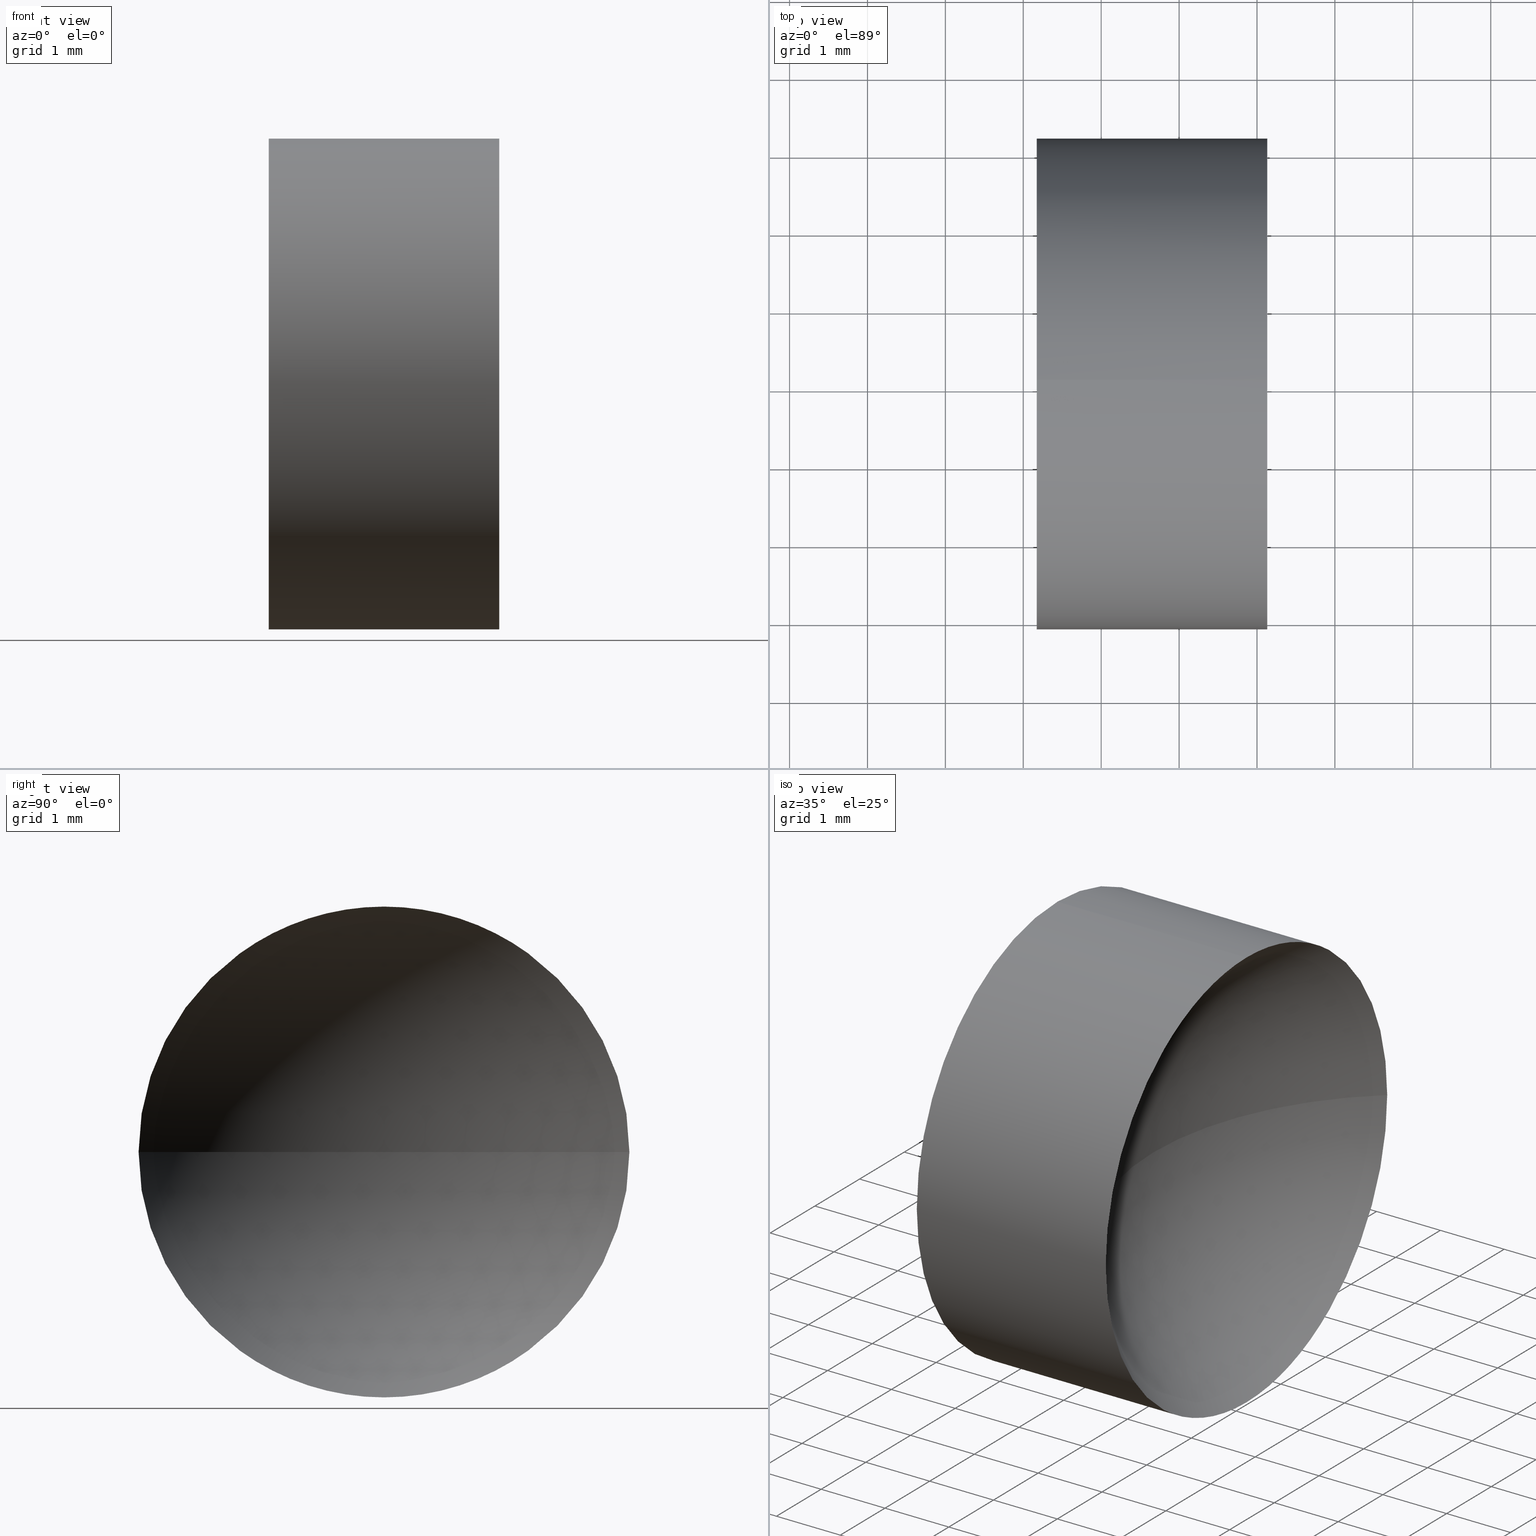
[diagram: canonical four-view strip — front | top / right | iso, engineering-drawing reading convention]
A machine part, canonical four-view strip (front | top / right | iso — engineering-drawing reading convention). The complete STEP part file that produces these views, byte-faithful:
ISO-10303-21;
HEADER;
FILE_DESCRIPTION (( 'STEP AP214' ),
    '1' );
FILE_NAME ('120003.STEP',
    '2019-06-14T02:18:31',
    ( '' ),
    ( '' ),
    'SwSTEP 2.0',
    'SolidWorks 2016',
    '' );
FILE_SCHEMA (( 'AUTOMOTIVE_DESIGN' ));
ENDSEC;

DATA;
#1 = EDGE_LOOP ( 'NONE', ( #78, #87, #23, #181 ) ) ;
#2 = LINE ( 'NONE', #27, #182 ) ;
#3 = CARTESIAN_POINT ( 'NONE',  ( 25.13218947520227800, 13.04452057459747900, 0.0000000000000000000 ) ) ;
#4 = FILL_AREA_STYLE ('',( #175 ) ) ;
#5 = SURFACE_STYLE_USAGE ( .BOTH. , #91 ) ;
#6 = DIRECTION ( 'NONE',  ( 0.0000000000000000000, 0.0000000000000000000, 1.000000000000000000 ) ) ;
#7 = SURFACE_STYLE_FILL_AREA ( #155 ) ;
#8 = UNCERTAINTY_MEASURE_WITH_UNIT (LENGTH_MEASURE( 1.000000000000000100E-005 ), #160, 'distance_accuracy_value', 'NONE');
#9 = FACE_OUTER_BOUND ( 'NONE', #1, .T. ) ;
#10 = EDGE_LOOP ( 'NONE', ( #169, #185 ) ) ;
#11 = PRODUCT_DEFINITION ( 'δ֪', '', #131, #106 ) ;
#12 = FACE_OUTER_BOUND ( 'NONE', #64, .T. ) ;
#13 = ADVANCED_FACE ( 'NONE', ( #12 ), #118, .F. ) ;
#14 = DIRECTION ( 'NONE',  ( 0.0000000000000000000, -1.000000000000000000, -1.224646799147353000E-016 ) ) ;
#15 = PRODUCT_RELATED_PRODUCT_CATEGORY ( 'part', '', ( #29 ) ) ;
#16 =( NAMED_UNIT ( * ) PLANE_ANGLE_UNIT ( ) SI_UNIT ( $, .RADIAN. ) );
#17 = CARTESIAN_POINT ( 'NONE',  ( 25.13218947520227800, 13.04452057459747900, -3.150000000000001700 ) ) ;
#18 = AXIS2_PLACEMENT_3D ( 'NONE', #168, #108, #117 ) ;
#19 = APPLICATION_CONTEXT ( 'automotive_design' ) ;
#20 = ORIENTED_EDGE ( 'NONE', *, *, #58, .F. ) ;
#21 = FACE_OUTER_BOUND ( 'NONE', #39, .T. ) ;
#22 = PRESENTATION_STYLE_ASSIGNMENT (( #5 ) ) ;
#23 = ORIENTED_EDGE ( 'NONE', *, *, #66, .F. ) ;
#24 = CIRCLE ( 'NONE', #79, 3.150000000000001700 ) ;
#25 = DIRECTION ( 'NONE',  ( 0.0000000000000000000, 0.0000000000000000000, -1.000000000000000000 ) ) ;
#26 = CARTESIAN_POINT ( 'NONE',  ( 27.80030591355844600, 13.04452057459747900, 0.0000000000000000000 ) ) ;
#27 = CARTESIAN_POINT ( 'NONE',  ( 21.24768693344483200, 13.04452057459747900, -3.150000000000001700 ) ) ;
#28 = DIRECTION ( 'NONE',  ( 0.0000000000000000000, 0.0000000000000000000, 1.000000000000000000 ) ) ;
#29 = PRODUCT ( '120003', '120003', '', ( #113 ) ) ;
#30 = CARTESIAN_POINT ( 'NONE',  ( 25.13218947520227800, 13.04452057459747900, 0.0000000000000000000 ) ) ;
#31 = DIRECTION ( 'NONE',  ( 0.0000000000000000000, 0.0000000000000000000, 1.000000000000000000 ) ) ;
#32 = APPLICATION_CONTEXT ( 'automotive_design' ) ;
#33 = ORIENTED_EDGE ( 'NONE', *, *, #53, .F. ) ;
#34 = CARTESIAN_POINT ( 'NONE',  ( 27.80030591355844600, 13.04452057459747900, 0.0000000000000000000 ) ) ;
#35 = FACE_OUTER_BOUND ( 'NONE', #148, .T. ) ;
#36 = CIRCLE ( 'NONE', #89, 3.150000000000001700 ) ;
#37 = ORIENTED_EDGE ( 'NONE', *, *, #75, .T. ) ;
#38 = MANIFOLD_SOLID_BREP ( '��ת1', #115 ) ;
#39 = EDGE_LOOP ( 'NONE', ( #37, #153, #112, #51, #177 ) ) ;
#40 = SPHERICAL_SURFACE ( 'NONE', #98, 4.128116438356165900 ) ;
#41 = AXIS2_PLACEMENT_3D ( 'NONE', #173, #50, #90 ) ;
#42 = ORIENTED_EDGE ( 'NONE', *, *, #167, .F. ) ;
#43 = DIRECTION ( 'NONE',  ( -1.000000000000000000, 0.0000000000000000000, 0.0000000000000000000 ) ) ;
#44 = DIRECTION ( 'NONE',  ( 0.0000000000000000000, 0.0000000000000000000, 1.000000000000000000 ) ) ;
#45 = DIRECTION ( 'NONE',  ( -1.000000000000000000, -0.0000000000000000000, -0.0000000000000000000 ) ) ;
#46 =( NAMED_UNIT ( * ) SI_UNIT ( $, .STERADIAN. ) SOLID_ANGLE_UNIT ( ) );
#47 = VERTEX_POINT ( 'NONE', #69 ) ;
#48 = FILL_AREA_STYLE_COLOUR ( '', #126 ) ;
#49 =( LENGTH_UNIT ( ) NAMED_UNIT ( * ) SI_UNIT ( .MILLI., .METRE. ) );
#50 = DIRECTION ( 'NONE',  ( -1.000000000000000000, -0.0000000000000000000, -0.0000000000000000000 ) ) ;
#51 = ORIENTED_EDGE ( 'NONE', *, *, #83, .F. ) ;
#52 = STYLED_ITEM ( 'NONE', ( #22 ), #85 ) ;
#53 = EDGE_CURVE ( 'NONE', #130, #55, #179, .T. ) ;
#54 = ORIENTED_EDGE ( 'NONE', *, *, #83, .T. ) ;
#55 = VERTEX_POINT ( 'NONE', #138 ) ;
#56 = ADVANCED_FACE ( 'NONE', ( #21 ), #127, .T. ) ;
#57 = PLANE ( 'NONE',  #18 ) ;
#58 = EDGE_CURVE ( 'NONE', #97, #144, #2, .T. ) ;
#59 = DIRECTION ( 'NONE',  ( 0.0000000000000000000, 0.0000000000000000000, 1.000000000000000000 ) ) ;
#60 = CYLINDRICAL_SURFACE ( 'NONE', #114, 3.150000000000001700 ) ;
#61 = CARTESIAN_POINT ( 'NONE',  ( 25.13218947520227800, 13.04452057459747900, 0.0000000000000000000 ) ) ;
#62 = DIRECTION ( 'NONE',  ( 0.0000000000000000000, 0.0000000000000000000, 1.000000000000000000 ) ) ;
#63 = DIRECTION ( 'NONE',  ( -1.000000000000000000, -0.0000000000000000000, -0.0000000000000000000 ) ) ;
#64 = EDGE_LOOP ( 'NONE', ( #33, #81, #149, #161 ) ) ;
#65 = LINE ( 'NONE', #74, #72 ) ;
#66 = EDGE_CURVE ( 'NONE', #47, #55, #162, .T. ) ;
#67 = ADVANCED_FACE ( 'NONE', ( #140 ), #57, .F. ) ;
#68 = EDGE_CURVE ( 'NONE', #77, #144, #100, .T. ) ;
#69 = CARTESIAN_POINT ( 'NONE',  ( 25.13218947520227800, 9.894520574597477100, 0.0000000000000000000 ) ) ;
#70 = DIRECTION ( 'NONE',  ( 0.0000000000000000000, -1.224646799147353200E-016, 1.000000000000000000 ) ) ;
#71 = UNCERTAINTY_MEASURE_WITH_UNIT (LENGTH_MEASURE( 1.000000000000000100E-005 ), #49, 'distance_accuracy_value', 'NONE');
#72 = VECTOR ( 'NONE', #105, 1000.000000000000000 ) ;
#73 = CARTESIAN_POINT ( 'NONE',  ( 25.13218947520227800, 13.04452057459747900, 3.150000000000001700 ) ) ;
#74 = CARTESIAN_POINT ( 'NONE',  ( 21.24768693344483200, 13.04452057459747900, 3.150000000000001700 ) ) ;
#75 = EDGE_CURVE ( 'NONE', #130, #97, #95, .T. ) ;
#76 = APPLICATION_PROTOCOL_DEFINITION ( 'draft international standard', 'automotive_design', 1998, #19 ) ;
#77 = VERTEX_POINT ( 'NONE', #99 ) ;
#78 = ORIENTED_EDGE ( 'NONE', *, *, #75, .F. ) ;
#79 = AXIS2_PLACEMENT_3D ( 'NONE', #143, #101, #59 ) ;
#80 = MECHANICAL_DESIGN_GEOMETRIC_PRESENTATION_REPRESENTATION (  '', ( #52 ), #151 ) ;
#81 = ORIENTED_EDGE ( 'NONE', *, *, #128, .F. ) ;
#82 = ORIENTED_EDGE ( 'NONE', *, *, #147, .T. ) ;
#83 = EDGE_CURVE ( 'NONE', #159, #77, #65, .T. ) ;
#84 = CARTESIAN_POINT ( 'NONE',  ( 21.24768693344483200, 13.04452057459747900, 0.0000000000000000000 ) ) ;
#85 = ADVANCED_BREP_SHAPE_REPRESENTATION ( '120003', ( #38, #129 ), #88 ) ;
#86 = CARTESIAN_POINT ( 'NONE',  ( 27.80030591355844600, 13.04452057459747900, 0.0000000000000000000 ) ) ;
#87 = ORIENTED_EDGE ( 'NONE', *, *, #53, .T. ) ;
#88 =( GEOMETRIC_REPRESENTATION_CONTEXT ( 3 ) GLOBAL_UNCERTAINTY_ASSIGNED_CONTEXT ( ( #71 ) ) GLOBAL_UNIT_ASSIGNED_CONTEXT ( ( #49, #174, #124 ) ) REPRESENTATION_CONTEXT ( 'NONE', 'WORKASPACE' ) );
#89 = AXIS2_PLACEMENT_3D ( 'NONE', #30, #63, #31 ) ;
#90 = DIRECTION ( 'NONE',  ( 0.0000000000000000000, 0.0000000000000000000, 1.000000000000000000 ) ) ;
#91 = SURFACE_SIDE_STYLE ('',( #119 ) ) ;
#92 = DIRECTION ( 'NONE',  ( -1.000000000000000000, -0.0000000000000000000, -0.0000000000000000000 ) ) ;
#93 = ORIENTED_EDGE ( 'NONE', *, *, #183, .T. ) ;
#94 = STYLED_ITEM ( 'NONE', ( #152 ), #38 ) ;
#95 = CIRCLE ( 'NONE', #180, 3.150000000000001700 ) ;
#96 = DIRECTION ( 'NONE',  ( -1.000000000000000000, -0.0000000000000000000, -0.0000000000000000000 ) ) ;
#97 = VERTEX_POINT ( 'NONE', #17 ) ;
#98 = AXIS2_PLACEMENT_3D ( 'NONE', #34, #102, #125 ) ;
#99 = CARTESIAN_POINT ( 'NONE',  ( 22.17218947520228100, 13.04452057459747900, 3.150000000000001700 ) ) ;
#100 = CIRCLE ( 'NONE', #103, 3.150000000000001700 ) ;
#101 = DIRECTION ( 'NONE',  ( -1.000000000000000000, -0.0000000000000000000, -0.0000000000000000000 ) ) ;
#102 = DIRECTION ( 'NONE',  ( 0.0000000000000000000, 0.0000000000000000000, 1.000000000000000000 ) ) ;
#103 = AXIS2_PLACEMENT_3D ( 'NONE', #135, #45, #28 ) ;
#104 = DIRECTION ( 'NONE',  ( 1.000000000000000000, 0.0000000000000000000, 0.0000000000000000000 ) ) ;
#105 = DIRECTION ( 'NONE',  ( -1.000000000000000000, -0.0000000000000000000, -0.0000000000000000000 ) ) ;
#106 = PRODUCT_DEFINITION_CONTEXT ( 'detailed design', #32, 'design' ) ;
#107 = AXIS2_PLACEMENT_3D ( 'NONE', #170, #96, #154 ) ;
#108 = DIRECTION ( 'NONE',  ( 1.000000000000000000, 0.0000000000000000000, 0.0000000000000000000 ) ) ;
#109 = CARTESIAN_POINT ( 'NONE',  ( 27.80030591355844600, 13.04452057459747900, 0.0000000000000000000 ) ) ;
#110 = CARTESIAN_POINT ( 'NONE',  ( 0.0000000000000000000, 0.0000000000000000000, 0.0000000000000000000 ) ) ;
#111 = AXIS2_PLACEMENT_3D ( 'NONE', #86, #44, #166 ) ;
#112 = ORIENTED_EDGE ( 'NONE', *, *, #68, .F. ) ;
#113 = PRODUCT_CONTEXT ( 'NONE', #19, 'mechanical' ) ;
#114 = AXIS2_PLACEMENT_3D ( 'NONE', #84, #184, #145 ) ;
#115 = CLOSED_SHELL ( 'NONE', ( #56, #136, #13, #133, #67 ) ) ;
#116 = UNCERTAINTY_MEASURE_WITH_UNIT (LENGTH_MEASURE( 1.000000000000000100E-005 ), #171, 'distance_accuracy_value', 'NONE');
#117 = DIRECTION ( 'NONE',  ( 0.0000000000000000000, 0.0000000000000000000, -1.000000000000000000 ) ) ;
#118 = SPHERICAL_SURFACE ( 'NONE', #111, 4.128116438356165900 ) ;
#119 = SURFACE_STYLE_FILL_AREA ( #4 ) ;
#120 = AXIS2_PLACEMENT_3D ( 'NONE', #3, #122, #62 ) ;
#121 = PRESENTATION_LAYER_ASSIGNMENT (  '', '', ( #94 ) ) ;
#122 = DIRECTION ( 'NONE',  ( -1.000000000000000000, -0.0000000000000000000, -0.0000000000000000000 ) ) ;
#123 = CARTESIAN_POINT ( 'NONE',  ( 25.13218947520227800, 16.19452057459748000, 3.857637417314164200E-016 ) ) ;
#124 =( NAMED_UNIT ( * ) SI_UNIT ( $, .STERADIAN. ) SOLID_ANGLE_UNIT ( ) );
#125 = DIRECTION ( 'NONE',  ( 0.0000000000000000000, -1.000000000000000000, 0.0000000000000000000 ) ) ;
#126 = COLOUR_RGB ( '',1.000000000000000000, 1.000000000000000000, 1.000000000000000000 ) ;
#127 = CYLINDRICAL_SURFACE ( 'NONE', #107, 3.150000000000001700 ) ;
#128 = EDGE_CURVE ( 'NONE', #159, #130, #24, .T. ) ;
#129 = AXIS2_PLACEMENT_3D ( 'NONE', #110, #6, #104 ) ;
#130 = VERTEX_POINT ( 'NONE', #123 ) ;
#131 = PRODUCT_DEFINITION_FORMATION_WITH_SPECIFIED_SOURCE ( '�κ�', '', #29, .NOT_KNOWN. ) ;
#132 = CIRCLE ( 'NONE', #41, 3.150000000000001700 ) ;
#133 = ADVANCED_FACE ( 'NONE', ( #35 ), #60, .T. ) ;
#134 = DIRECTION ( 'NONE',  ( -1.000000000000000000, -0.0000000000000000000, -0.0000000000000000000 ) ) ;
#135 = CARTESIAN_POINT ( 'NONE',  ( 22.17218947520228100, 13.04452057459747900, 0.0000000000000000000 ) ) ;
#136 = ADVANCED_FACE ( 'NONE', ( #9 ), #40, .F. ) ;
#137 =( NAMED_UNIT ( * ) PLANE_ANGLE_UNIT ( ) SI_UNIT ( $, .RADIAN. ) );
#138 = CARTESIAN_POINT ( 'NONE',  ( 23.67218947520228100, 13.04452057459747900, 0.0000000000000000000 ) ) ;
#139 = SHAPE_DEFINITION_REPRESENTATION ( #163, #85 ) ;
#140 = FACE_OUTER_BOUND ( 'NONE', #10, .T. ) ;
#141 = DIRECTION ( 'NONE',  ( 0.0000000000000000000, 0.0000000000000000000, 1.000000000000000000 ) ) ;
#142 = AXIS2_PLACEMENT_3D ( 'NONE', #26, #70, #14 ) ;
#143 = CARTESIAN_POINT ( 'NONE',  ( 25.13218947520227800, 13.04452057459747900, 0.0000000000000000000 ) ) ;
#144 = VERTEX_POINT ( 'NONE', #158 ) ;
#145 = DIRECTION ( 'NONE',  ( 0.0000000000000000000, 0.0000000000000000000, 1.000000000000000000 ) ) ;
#146 =( NAMED_UNIT ( * ) SI_UNIT ( $, .STERADIAN. ) SOLID_ANGLE_UNIT ( ) );
#147 = EDGE_CURVE ( 'NONE', #47, #159, #36, .T. ) ;
#148 = EDGE_LOOP ( 'NONE', ( #20, #93, #82, #54, #42 ) ) ;
#149 = ORIENTED_EDGE ( 'NONE', *, *, #147, .F. ) ;
#150 =( GEOMETRIC_REPRESENTATION_CONTEXT ( 3 ) GLOBAL_UNCERTAINTY_ASSIGNED_CONTEXT ( ( #116 ) ) GLOBAL_UNIT_ASSIGNED_CONTEXT ( ( #171, #137, #46 ) ) REPRESENTATION_CONTEXT ( 'NONE', 'WORKASPACE' ) );
#151 =( GEOMETRIC_REPRESENTATION_CONTEXT ( 3 ) GLOBAL_UNCERTAINTY_ASSIGNED_CONTEXT ( ( #8 ) ) GLOBAL_UNIT_ASSIGNED_CONTEXT ( ( #160, #16, #146 ) ) REPRESENTATION_CONTEXT ( 'NONE', 'WORKASPACE' ) );
#152 = PRESENTATION_STYLE_ASSIGNMENT (( #157 ) ) ;
#153 = ORIENTED_EDGE ( 'NONE', *, *, #58, .T. ) ;
#154 = DIRECTION ( 'NONE',  ( 0.0000000000000000000, 0.0000000000000000000, 1.000000000000000000 ) ) ;
#155 = FILL_AREA_STYLE ('',( #48 ) ) ;
#156 = MECHANICAL_DESIGN_GEOMETRIC_PRESENTATION_REPRESENTATION (  '', ( #94 ), #150 ) ;
#157 = SURFACE_STYLE_USAGE ( .BOTH. , #186 ) ;
#158 = CARTESIAN_POINT ( 'NONE',  ( 22.17218947520228100, 13.04452057459747900, -3.150000000000001700 ) ) ;
#159 = VERTEX_POINT ( 'NONE', #73 ) ;
#160 =( LENGTH_UNIT ( ) NAMED_UNIT ( * ) SI_UNIT ( .MILLI., .METRE. ) );
#161 = ORIENTED_EDGE ( 'NONE', *, *, #66, .T. ) ;
#162 = CIRCLE ( 'NONE', #165, 4.128116438356165000 ) ;
#163 = PRODUCT_DEFINITION_SHAPE ( 'NONE', 'NONE',  #11 ) ;
#164 = COLOUR_RGB ( '',1.000000000000000000, 1.000000000000000000, 1.000000000000000000 ) ;
#165 = AXIS2_PLACEMENT_3D ( 'NONE', #109, #25, #43 ) ;
#166 = DIRECTION ( 'NONE',  ( 0.0000000000000000000, -1.000000000000000000, 0.0000000000000000000 ) ) ;
#167 = EDGE_CURVE ( 'NONE', #144, #77, #132, .T. ) ;
#168 = CARTESIAN_POINT ( 'NONE',  ( 22.17218947520228100, 13.04452057459747900, 0.0000000000000000000 ) ) ;
#169 = ORIENTED_EDGE ( 'NONE', *, *, #68, .T. ) ;
#170 = CARTESIAN_POINT ( 'NONE',  ( 21.24768693344483200, 13.04452057459747900, 0.0000000000000000000 ) ) ;
#171 =( LENGTH_UNIT ( ) NAMED_UNIT ( * ) SI_UNIT ( .MILLI., .METRE. ) );
#172 = CIRCLE ( 'NONE', #120, 3.150000000000001700 ) ;
#173 = CARTESIAN_POINT ( 'NONE',  ( 22.17218947520228100, 13.04452057459747900, 0.0000000000000000000 ) ) ;
#174 =( NAMED_UNIT ( * ) PLANE_ANGLE_UNIT ( ) SI_UNIT ( $, .RADIAN. ) );
#175 = FILL_AREA_STYLE_COLOUR ( '', #164 ) ;
#176 = APPLICATION_PROTOCOL_DEFINITION ( 'draft international standard', 'automotive_design', 1998, #32 ) ;
#177 = ORIENTED_EDGE ( 'NONE', *, *, #128, .T. ) ;
#178 = PRESENTATION_LAYER_ASSIGNMENT (  '', '', ( #52 ) ) ;
#179 = CIRCLE ( 'NONE', #142, 4.128116438356166800 ) ;
#180 = AXIS2_PLACEMENT_3D ( 'NONE', #61, #92, #141 ) ;
#181 = ORIENTED_EDGE ( 'NONE', *, *, #183, .F. ) ;
#182 = VECTOR ( 'NONE', #134, 1000.000000000000000 ) ;
#183 = EDGE_CURVE ( 'NONE', #97, #47, #172, .T. ) ;
#184 = DIRECTION ( 'NONE',  ( -1.000000000000000000, -0.0000000000000000000, -0.0000000000000000000 ) ) ;
#185 = ORIENTED_EDGE ( 'NONE', *, *, #167, .T. ) ;
#186 = SURFACE_SIDE_STYLE ('',( #7 ) ) ;
ENDSEC;
END-ISO-10303-21;
